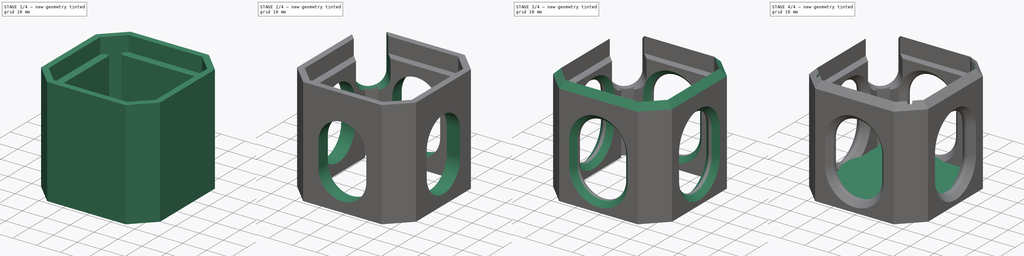
[diagram: build sequence overview — one tinted view per stage of 4, left to right]
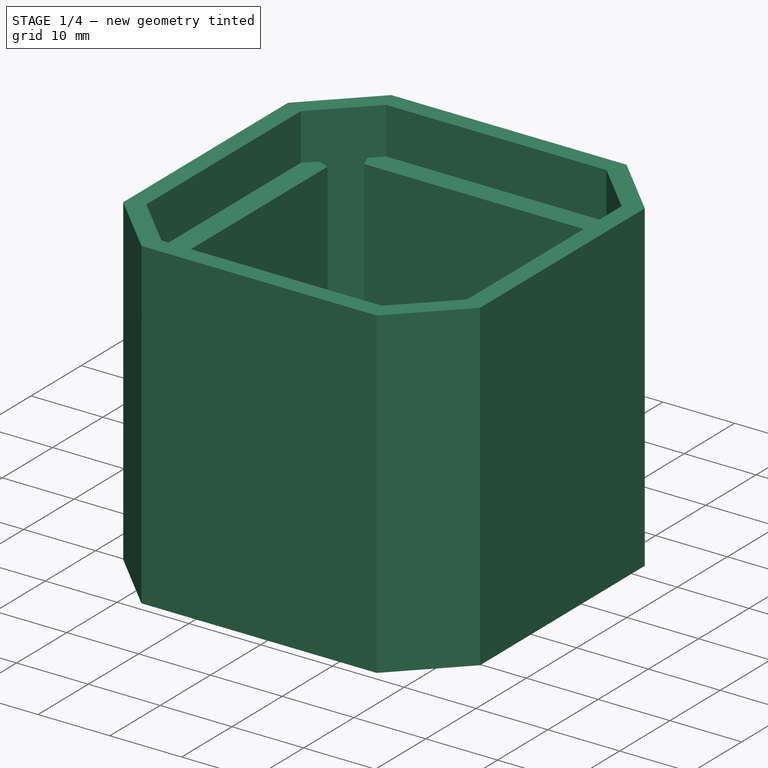
[diagram: stage 1 of 4 — iso view after this stage's code; geometry added in this stage tinted green]
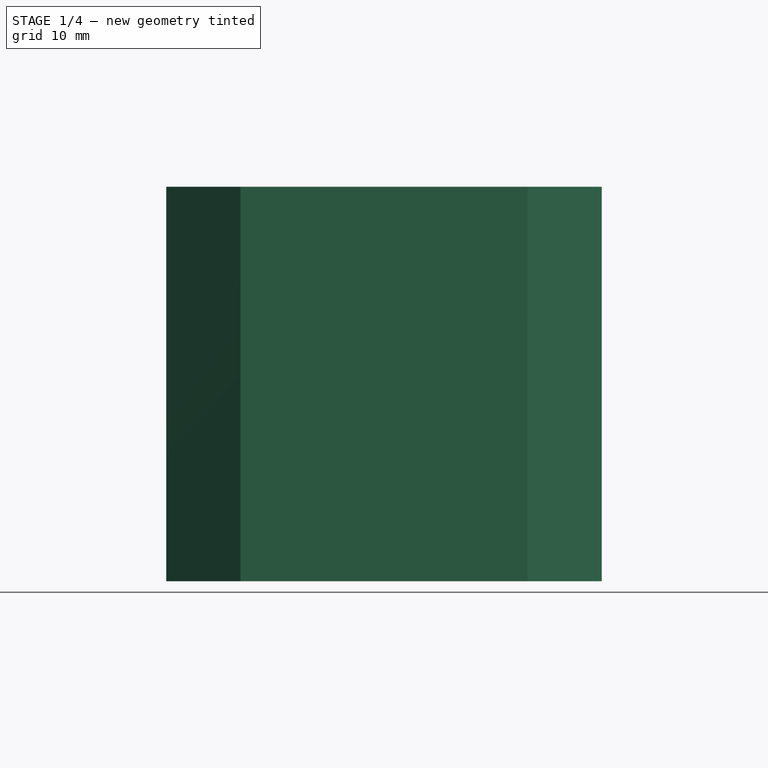
[diagram: stage 1 of 4 — front view after this stage's code; geometry added in this stage tinted green]
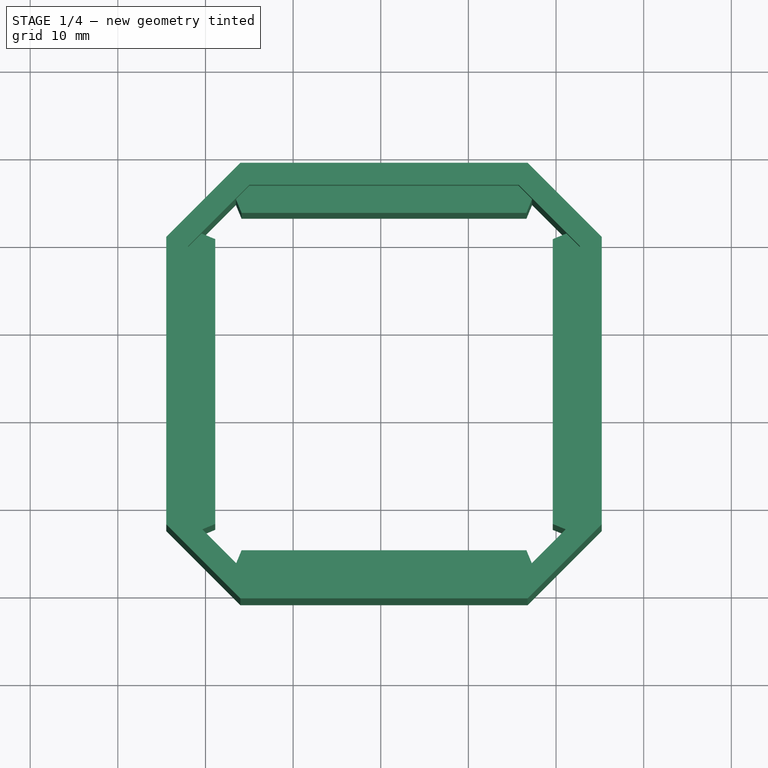
[diagram: stage 1 of 4 — top view after this stage's code; geometry added in this stage tinted green]
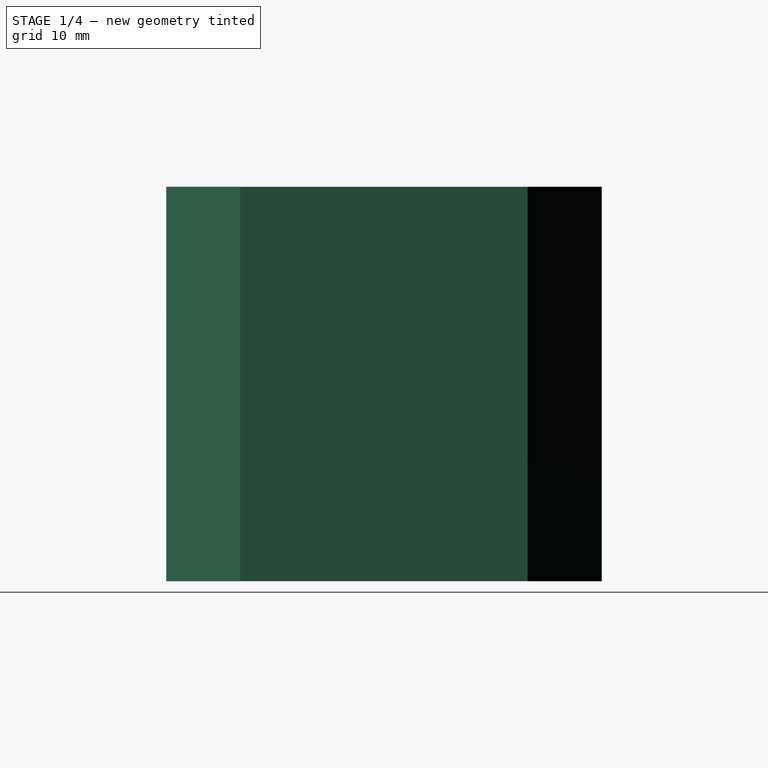
[diagram: stage 1 of 4 — right view after this stage's code; geometry added in this stage tinted green]
FCSTD DOCUMENT  (FreeCAD 0.20R29603 (Git))
Label: static-camera-foot
License: All rights reserved
LicenseURL: http://en.wikipedia.org/wiki/All_rights_reserved
objects: PartDesign::Plane×7, Sketcher::SketchObject×7, PartDesign::Pad×5, PartDesign::Pocket×3, PartDesign::PolarPattern×2, PartDesign::Chamfer×2, PartDesign::ShapeBinder×1, PartDesign::Line×1, PartDesign::Fillet×1, PartDesign::Hole×1, PartDesign::Body×1
note: 43 computed .brp shape members not serialized (recipe doc carries the construction recipe); baked Part::Feature solids carry a one-line shape summary decoded from their .brp

FEATURE [PartDesign::ShapeBinder] ShapeBinder001
  TraceSupport = false
FEATURE [PartDesign::Plane] DatumPlane002
  Length = 396.646
  MapMode = 5
  Placement = pos=(0,0,-11.25) rot=(1,0,0;3.14159rad)
  ResizeMode = 0
  Support = -> [ShapeBinder001]
  Width = 200.286
FEATURE [Sketcher::SketchObject] Sketch003
  ExternalGeometry = -> [ShapeBinder001]
  FullyConstrained = true
  MapMode = 5
  Placement = pos=(0,0,-11.25) rot=(1,0,0;3.14159rad)
  Support = -> [DatumPlane002]
  sketch-geometry (27):
    g0: LineSegment StartX=278.12 StartY=-119.26 StartZ=0 EndX=285.12 EndY=-126.26 EndZ=0
    g1: LineSegment StartX=285.12 StartY=-126.26 StartZ=0 EndX=315.62 EndY=-126.26 EndZ=0
    g2: LineSegment StartX=315.62 StartY=-126.26 StartZ=0 EndX=322.62 EndY=-119.26 EndZ=0
    g3: LineSegment StartX=322.62 StartY=-119.26 StartZ=0 EndX=322.62 EndY=-88.76 EndZ=0
    g4: LineSegment StartX=322.62 StartY=-88.76 StartZ=0 EndX=315.62 EndY=-81.76 EndZ=0
    g5: LineSegment StartX=315.62 StartY=-81.76 StartZ=0 EndX=285.12 EndY=-81.76 EndZ=0
    g6: LineSegment StartX=285.12 StartY=-81.76 StartZ=0 EndX=278.12 EndY=-88.76 EndZ=0
    g7: LineSegment StartX=278.12 StartY=-88.76 StartZ=0 EndX=278.12 EndY=-119.26 EndZ=0
    g8: LineSegment StartX=315.72 StartY=-126.36 StartZ=0 EndX=285.02 EndY=-126.36 EndZ=0
    g9: LineSegment StartX=322.72 StartY=-119.36 StartZ=0 EndX=322.72 EndY=-88.66 EndZ=0
    g10: LineSegment StartX=285.02 StartY=-81.66 StartZ=0 EndX=315.72 EndY=-81.66 EndZ=0
    g11: LineSegment StartX=278.02 StartY=-119.36 StartZ=0 EndX=278.02 EndY=-88.66 EndZ=0
    g12: LineSegment StartX=315.72 StartY=-126.36 StartZ=0 EndX=322.72 EndY=-119.36 EndZ=0
    g13: LineSegment StartX=322.72 StartY=-88.66 StartZ=0 EndX=315.72 EndY=-81.66 EndZ=0
    g14: LineSegment StartX=278.02 StartY=-88.66 StartZ=0 EndX=285.02 EndY=-81.66 EndZ=0
    g15: LineSegment StartX=285.02 StartY=-126.36 StartZ=0 EndX=278.02 EndY=-119.36 EndZ=0
    g16: LineSegment StartX=275.52 StartY=-120.396 StartZ=0 EndX=283.984 EndY=-128.86 EndZ=0
    g17: LineSegment StartX=283.984 StartY=-128.86 StartZ=0 EndX=316.756 EndY=-128.86 EndZ=0
    g18: LineSegment StartX=316.756 StartY=-128.86 StartZ=0 EndX=325.22 EndY=-120.396 EndZ=0
    g19: LineSegment StartX=325.22 StartY=-120.396 StartZ=0 EndX=325.22 EndY=-87.6245 EndZ=0
    g20: LineSegment StartX=325.22 StartY=-87.6245 StartZ=0 EndX=316.756 EndY=-79.16 EndZ=0
    g21: LineSegment StartX=316.756 StartY=-79.16 StartZ=0 EndX=283.984 EndY=-79.16 EndZ=0
    g22: LineSegment StartX=283.984 StartY=-79.16 StartZ=0 EndX=275.52 EndY=-87.6245 EndZ=0
    g23: LineSegment StartX=275.52 StartY=-87.6245 StartZ=0 EndX=275.52 EndY=-120.396 EndZ=0
    g24: LineSegment StartX=279.752 StartY=-124.628 StartZ=0 EndX=281.52 EndY=-122.86 EndZ=0
    g25: GeomPoint X=300.37 Y=-128.86 Z=0
    g26: GeomPoint X=300.37 Y=-126.36 Z=0
  constraints (72):
    c: Coincident(g0,g-3)
    c: Coincident(g0,g-6)
    c: Coincident(g1,g0)
    c: Coincident(g1,g-6)
    c: Coincident(g2,g1)
    c: Coincident(g2,g-5)
    c: Coincident(g3,g2)
    c: Coincident(g3,g-5)
    c: Coincident(g4,g3)
    c: Coincident(g4,g-4)
    c: Coincident(g5,g4)
    c: Coincident(g5,g-4)
    c: Coincident(g6,g5)
    c: Coincident(g6,g-3)
    c: Coincident(g7,g6)
    c: Coincident(g7,g0)
    c: Horizontal(g8)
    c: Vertical(g9)
    c: Horizontal(g10)
    c: Vertical(g11)
    c: Coincident(g12,g8)
    c: Coincident(g12,g9)
    c: Coincident(g13,g9)
    c: Coincident(g13,g10)
    c: Coincident(g14,g11)
    c: Coincident(g14,g10)
    c: Coincident(g15,g8)
    c: Coincident(g15,g11)
    c: Parallel(g15,g0)
    c: Parallel(g14,g6)
    c: Parallel(g13,g4)
    c: Parallel(g12,g2)
    c: Equal(g8,g9)
    c: Equal(g9,g10)
    c: Equal(g10,g11)
    c: Equal(g12,g15)
    c: DistanceY(g5,g10) = 0.1
    c: DistanceX(g10,g5) = 0.1
    c: DistanceX(g1,g8) = 0.1
    c: DistanceY(g8,g1) = 0.1
    c: Coincident(g17,g16)
    c: Horizontal(g17)
    c: Coincident(g18,g17)
    c: Coincident(g19,g18)
    c: Vertical(g19)
    c: Coincident(g20,g19)
    c: Coincident(g21,g20)
    c: Horizontal(g21)
    c: Coincident(g22,g21)
    c: Coincident(g23,g22)
    c: Vertical(g23)
    c: Coincident(g23,g16)
    c: Equal(g18,g22)
    c: Parallel(g22,g14)
    c: Parallel(g18,g22)
    c: Parallel(g16,g20)
    c: Parallel(g15,g16)
    c: Equal(g21,g23)
    c: Equal(g23,g17)
    c: DistanceY(g17,g8) = 2.5
    c: Equal(g20,g22)
    c: Horizontal(g16,g11)
    c: Vertical(g8,g17)
    c: Vertical(g8,g16)
    c: Perpendicular(g16,g24)
    c: Distance(g24) = 2.5
    c: Symmetric(g16,g16,g24)
    c: Symmetric(g15,g15,g24)
    c: Symmetric(g17,g17,g25)
    c: Symmetric(g8,g8,g26)
    c: Vertical(g25,g26)
    c: Distance(g25,g26) = 2.5
FEATURE [PartDesign::Pad] Pad003
  Direction = (1,1,1)
  Length = 4
  Length2 = 6.5
  Placement = pos=(0,0,-11.25) rot=(1,0,0;3.14159rad)
  Profile = -> Sketch003
  Type = 4
FEATURE [PartDesign::Plane] DatumPlane003
  Length = 396.646
  MapMode = 5
  Placement = pos=(0,0,-15.25) rot=(1,0,0;3.14159rad)
  ResizeMode = 0
  Support = -> [Pad003]
  Width = 200.286
FEATURE [Sketcher::SketchObject] Sketch004
  ExternalGeometry = -> [ShapeBinder001,Pad003]
  FullyConstrained = true
  MapMode = 5
  Placement = pos=(0,0,-15.25) rot=(1,0,0;3.14159rad)
  Support = -> [DatumPlane003]
  sketch-geometry (26):
    g0: LineSegment StartX=279.706 StartY=-87.1742 StartZ=0 EndX=279.564 EndY=-87.1156 EndZ=0
    g1: LineSegment StartX=279.706 StartY=-87.1742 StartZ=0 EndX=281.12 EndY=-87.76 EndZ=0
    g2: LineSegment StartX=281.12 StartY=-87.76 StartZ=0 EndX=281.12 EndY=-120.26 EndZ=0
    g3: LineSegment StartX=281.12 StartY=-120.26 StartZ=0 EndX=279.706 EndY=-120.846 EndZ=0
    g4: LineSegment StartX=279.706 StartY=-120.846 StartZ=0 EndX=279.564 EndY=-120.904 EndZ=0
    g5: LineSegment StartX=278.02 StartY=-88.66 StartZ=0 EndX=278.02 EndY=-119.36 EndZ=0
    g6: LineSegment StartX=278.02 StartY=-119.36 StartZ=0 EndX=279.564 EndY=-120.904 EndZ=0
    g7: LineSegment StartX=278.02 StartY=-88.66 StartZ=0 EndX=279.564 EndY=-87.1156 EndZ=0
    g8: LineSegment StartX=284.12 StartY=-123.26 StartZ=0 EndX=316.62 EndY=-123.26 EndZ=0
    g9: LineSegment StartX=284.12 StartY=-123.26 StartZ=0 EndX=283.476 EndY=-124.816 EndZ=0
    g10: LineSegment StartX=316.62 StartY=-123.26 StartZ=0 EndX=317.264 EndY=-124.816 EndZ=0
    g11: LineSegment StartX=317.264 StartY=-124.816 StartZ=0 EndX=315.72 EndY=-126.36 EndZ=0
    g12: LineSegment StartX=315.72 StartY=-126.36 StartZ=0 EndX=285.02 EndY=-126.36 EndZ=0
    g13: LineSegment StartX=285.02 StartY=-126.36 StartZ=0 EndX=283.476 EndY=-124.816 EndZ=0
    g14: LineSegment StartX=319.62 StartY=-120.26 StartZ=0 EndX=321.176 EndY=-120.904 EndZ=0
    g15: LineSegment StartX=321.176 StartY=-120.904 StartZ=0 EndX=322.72 EndY=-119.36 EndZ=0
    g16: LineSegment StartX=322.72 StartY=-119.36 StartZ=0 EndX=322.72 EndY=-88.66 EndZ=0
    g17: LineSegment StartX=322.72 StartY=-88.66 StartZ=0 EndX=321.176 EndY=-87.1156 EndZ=0
    g18: LineSegment StartX=319.62 StartY=-87.76 StartZ=0 EndX=321.176 EndY=-87.1156 EndZ=0
    g19: LineSegment StartX=319.62 StartY=-87.76 StartZ=0 EndX=319.62 EndY=-120.26 EndZ=0
    g20: LineSegment StartX=316.62 StartY=-84.76 StartZ=0 EndX=284.12 EndY=-84.76 EndZ=0
    g21: LineSegment StartX=284.12 StartY=-84.76 StartZ=0 EndX=283.476 EndY=-83.2044 EndZ=0
    g22: LineSegment StartX=283.476 StartY=-83.2044 StartZ=0 EndX=285.02 EndY=-81.66 EndZ=0
    g23: LineSegment StartX=285.02 StartY=-81.66 StartZ=0 EndX=315.72 EndY=-81.66 EndZ=0
    g24: LineSegment StartX=315.72 StartY=-81.66 StartZ=0 EndX=317.264 EndY=-83.2044 EndZ=0
    g25: LineSegment StartX=316.62 StartY=-84.76 StartZ=0 EndX=317.264 EndY=-83.2044 EndZ=0
  constraints (60):
    c: Coincident(g0,g-4)
    c: PointOnObject(g0,g-21)
    c: Parallel(g0,g-4)
    c: Coincident(g1,g0)
    c: Coincident(g1,g-4)
    c: Coincident(g2,g1)
    c: Coincident(g2,g-5)
    c: Coincident(g3,g2)
    c: Coincident(g3,g-5)
    c: Coincident(g4,g3)
    c: PointOnObject(g4,g-19)
    c: Parallel(g4,g3)
    c: Coincident(g5,g-21)
    c: Coincident(g5,g-20)
    c: Coincident(g6,g5)
    c: Coincident(g6,g4)
    c: Coincident(g7,g5)
    c: Coincident(g7,g0)
    c: Coincident(g8,g-7)
    c: Coincident(g8,g-8)
    c: Coincident(g9,g8)
    c: PointOnObject(g9,g-19)
    c: Parallel(g9,g-7)
    c: Coincident(g10,g8)
    c: PointOnObject(g10,g-17)
    c: Parallel(g10,g-8)
    c: Coincident(g11,g10)
    c: Coincident(g11,g-18)
    c: Coincident(g12,g11)
    c: Coincident(g12,g-19)
    c: Coincident(g13,g12)
    c: Coincident(g13,g9)
    c: Coincident(g14,g-10)
    c: PointOnObject(g14,g-17)
    c: Parallel(g14,g-9)
    c: Coincident(g15,g14)
    c: Coincident(g15,g-17)
    c: Coincident(g16,g15)
    c: Coincident(g16,g-16)
    c: Parallel(g-15,g17)
    c: Coincident(g17,g16)
    c: Coincident(g18,g-11)
    c: Coincident(g18,g17)
    c: Parallel(g-11,g18)
    c: Coincident(g19,g18)
    c: Coincident(g19,g14)
    c: Coincident(g20,g-13)
    c: Coincident(g20,g-14)
    c: Coincident(g21,g20)
    c: PointOnObject(g21,g-21)
    c: Parallel(g21,g-14)
    c: Coincident(g22,g21)
    c: Coincident(g22,g-22)
    c: Coincident(g23,g22)
    c: Coincident(g23,g-22)
    c: Coincident(g24,g23)
    c: PointOnObject(g24,g-15)
    c: Coincident(g25,g20)
    c: Coincident(g25,g24)
    c: Parallel(g25,g-12)
FEATURE [PartDesign::Pad] Pad004
  BaseFeature = -> Pad003
  Direction = (1,1,1)
  Length = 4
  Length2 = 100
  Placement = pos=(0,0,-11.25) rot=(1,0,0;3.14159rad)
  Profile = -> Sketch004
  Reversed = true
  Type = 0
FEATURE [PartDesign::Plane] DatumPlane004
  Length = 396.646
  MapMode = 5
  Placement = pos=(0,0,-15.25) rot=(1,0,0;3.14159rad)
  ResizeMode = 0
  Support = -> [Pad004]
  Width = 200.286
FEATURE [Sketcher::SketchObject] Sketch005
  ExternalGeometry = -> [ShapeBinder001]
  FullyConstrained = true
  MapMode = 5
  Placement = pos=(0,0,-15.25) rot=(1,0,0;3.14159rad)
  Support = -> [DatumPlane004]
  sketch-geometry (27):
    g0: LineSegment StartX=278.12 StartY=-119.26 StartZ=0 EndX=285.12 EndY=-126.26 EndZ=0
    g1: LineSegment StartX=285.12 StartY=-126.26 StartZ=0 EndX=315.62 EndY=-126.26 EndZ=0
    g2: LineSegment StartX=315.62 StartY=-126.26 StartZ=0 EndX=322.62 EndY=-119.26 EndZ=0
    g3: LineSegment StartX=322.62 StartY=-119.26 StartZ=0 EndX=322.62 EndY=-88.76 EndZ=0
    g4: LineSegment StartX=322.62 StartY=-88.76 StartZ=0 EndX=315.62 EndY=-81.76 EndZ=0
    g5: LineSegment StartX=315.62 StartY=-81.76 StartZ=0 EndX=285.12 EndY=-81.76 EndZ=0
    g6: LineSegment StartX=285.12 StartY=-81.76 StartZ=0 EndX=278.12 EndY=-88.76 EndZ=0
    g7: LineSegment StartX=278.12 StartY=-88.76 StartZ=0 EndX=278.12 EndY=-119.26 EndZ=0
    g8: LineSegment StartX=315.72 StartY=-126.36 StartZ=0 EndX=285.02 EndY=-126.36 EndZ=0
    g9: LineSegment StartX=322.72 StartY=-119.36 StartZ=0 EndX=322.72 EndY=-88.66 EndZ=0
    g10: LineSegment StartX=285.02 StartY=-81.66 StartZ=0 EndX=315.72 EndY=-81.66 EndZ=0
    g11: LineSegment StartX=278.02 StartY=-119.36 StartZ=0 EndX=278.02 EndY=-88.66 EndZ=0
    g12: LineSegment StartX=315.72 StartY=-126.36 StartZ=0 EndX=322.72 EndY=-119.36 EndZ=0
    g13: LineSegment StartX=322.72 StartY=-88.66 StartZ=0 EndX=315.72 EndY=-81.66 EndZ=0
    g14: LineSegment StartX=278.02 StartY=-88.66 StartZ=0 EndX=285.02 EndY=-81.66 EndZ=0
    g15: LineSegment StartX=285.02 StartY=-126.36 StartZ=0 EndX=278.02 EndY=-119.36 EndZ=0
    g16: LineSegment StartX=275.52 StartY=-120.396 StartZ=0 EndX=283.984 EndY=-128.86 EndZ=0
    g17: LineSegment StartX=283.984 StartY=-128.86 StartZ=0 EndX=316.756 EndY=-128.86 EndZ=0
    g18: LineSegment StartX=316.756 StartY=-128.86 StartZ=0 EndX=325.22 EndY=-120.396 EndZ=0
    g19: LineSegment StartX=325.22 StartY=-120.396 StartZ=0 EndX=325.22 EndY=-87.6245 EndZ=0
    g20: LineSegment StartX=325.22 StartY=-87.6245 StartZ=0 EndX=316.756 EndY=-79.16 EndZ=0
    g21: LineSegment StartX=316.756 StartY=-79.16 StartZ=0 EndX=283.984 EndY=-79.16 EndZ=0
    g22: LineSegment StartX=283.984 StartY=-79.16 StartZ=0 EndX=275.52 EndY=-87.6245 EndZ=0
    g23: LineSegment StartX=275.52 StartY=-87.6245 StartZ=0 EndX=275.52 EndY=-120.396 EndZ=0
    g24: LineSegment StartX=279.752 StartY=-124.628 StartZ=0 EndX=281.52 EndY=-122.86 EndZ=0
    g25: GeomPoint X=300.37 Y=-128.86 Z=0
    g26: GeomPoint X=300.37 Y=-126.36 Z=0
  constraints (72):
    c: Coincident(g0,g-3)
    c: Coincident(g0,g-6)
    c: Coincident(g1,g0)
    c: Coincident(g1,g-6)
    c: Coincident(g2,g1)
    c: Coincident(g2,g-5)
    c: Coincident(g3,g2)
    c: Coincident(g3,g-5)
    c: Coincident(g4,g3)
    c: Coincident(g4,g-4)
    c: Coincident(g5,g4)
    c: Coincident(g5,g-4)
    c: Coincident(g6,g5)
    c: Coincident(g6,g-3)
    c: Coincident(g7,g6)
    c: Coincident(g7,g0)
    c: Horizontal(g8)
    c: Vertical(g9)
    c: Horizontal(g10)
    c: Vertical(g11)
    c: Coincident(g12,g8)
    c: Coincident(g12,g9)
    c: Coincident(g13,g9)
    c: Coincident(g13,g10)
    c: Coincident(g14,g11)
    c: Coincident(g14,g10)
    c: Coincident(g15,g8)
    c: Coincident(g15,g11)
    c: Parallel(g15,g0)
    c: Parallel(g14,g6)
    c: Parallel(g13,g4)
    c: Parallel(g12,g2)
    c: Equal(g8,g9)
    c: Equal(g9,g10)
    c: Equal(g10,g11)
    c: Equal(g12,g15)
    c: DistanceY(g5,g10) = 0.1
    c: DistanceX(g10,g5) = 0.1
    c: DistanceX(g1,g8) = 0.1
    c: DistanceY(g8,g1) = 0.1
    c: Coincident(g17,g16)
    c: Horizontal(g17)
    c: Coincident(g18,g17)
    c: Coincident(g19,g18)
    c: Vertical(g19)
    c: Coincident(g20,g19)
    c: Coincident(g21,g20)
    c: Horizontal(g21)
    c: Coincident(g22,g21)
    c: Coincident(g23,g22)
    c: Vertical(g23)
    c: Coincident(g23,g16)
    c: Equal(g18,g22)
    c: Parallel(g22,g14)
    c: Parallel(g18,g22)
    c: Parallel(g16,g20)
    c: Parallel(g15,g16)
    c: Equal(g21,g23)
    c: Equal(g23,g17)
    c: DistanceY(g17,g8) = 2.5
    c: Equal(g20,g22)
    c: Horizontal(g16,g11)
    c: Vertical(g8,g17)
    c: Vertical(g8,g16)
    c: Perpendicular(g16,g24)
    c: Distance(g24) = 2.5
    c: Symmetric(g16,g16,g24)
    c: Symmetric(g15,g15,g24)
    c: Symmetric(g17,g17,g25)
    c: Symmetric(g8,g8,g26)
    c: Vertical(g25,g26)
    c: Distance(g25,g26) = 2.5
FEATURE [PartDesign::Pad] Pad005
  BaseFeature = -> Pad004
  Direction = (1,1,1)
  Length = 34.5
  Length2 = 100
  Placement = pos=(0,0,-11.25) rot=(1,0,0;3.14159rad)
  Profile = -> Sketch005
  Type = 0
FEATURE [PartDesign::Plane] DatumPlane005
  Length = 389.084
  MapMode = 5
  Placement = pos=(77.5622,-77.5622,-11.25) rot=(-0.862856,-0.357407,0.357407;1.71777rad)
  ResizeMode = 0
  Support = -> [Pad005]
  Width = 107.396
FEATURE [Sketcher::SketchObject] Sketch006
  ExternalGeometry = -> [Pad005]
  FullyConstrained = true
  MapMode = 5
  Placement = pos=(77.5622,-77.5622,-11.25) rot=(-0.862856,-0.357407,0.357407;1.71777rad)
  Support = -> [DatumPlane005]
  sketch-geometry (4):
    g0: ArcOfCircle CenterX=285.94 CenterY=7.5 CenterZ=0 NormalX=0 NormalY=0 NormalZ=1 AngleXU=0 Radius=5.98528 StartAngle=6.28318 EndAngle=9.42478
    g1: LineSegment StartX=279.955 StartY=-6.5 StartZ=0 EndX=279.955 EndY=7.49998 EndZ=0
    g2: LineSegment StartX=291.925 StartY=-6.5 StartZ=0 EndX=291.925 EndY=7.49998 EndZ=0
    g3: LineSegment StartX=291.925 StartY=-6.5 StartZ=0 EndX=279.955 EndY=-6.5 EndZ=0
  constraints (11):
    c: Tangent(g0,g-6)
    c: Tangent(g-5,g0)
    c: Coincident(g1,g-7)
    c: Vertical(g1)
    c: Coincident(g2,g-7)
    c: Vertical(g2)
    c: Coincident(g3,g2)
    c: Coincident(g3,g1)
    c: DistanceY(g2,g0) = 14
    c: Coincident(g0,g2)
    c: Coincident(g0,g1)
FEATURE [PartDesign::Pad] Pad
  BaseFeature = -> Pad005
  Direction = (1,1,1)
  Length = 34.5
  Length2 = 100
  Placement = pos=(0,0,-11.25) rot=(1,0,0;3.14159rad)
  Profile = -> Sketch004
  Type = 0
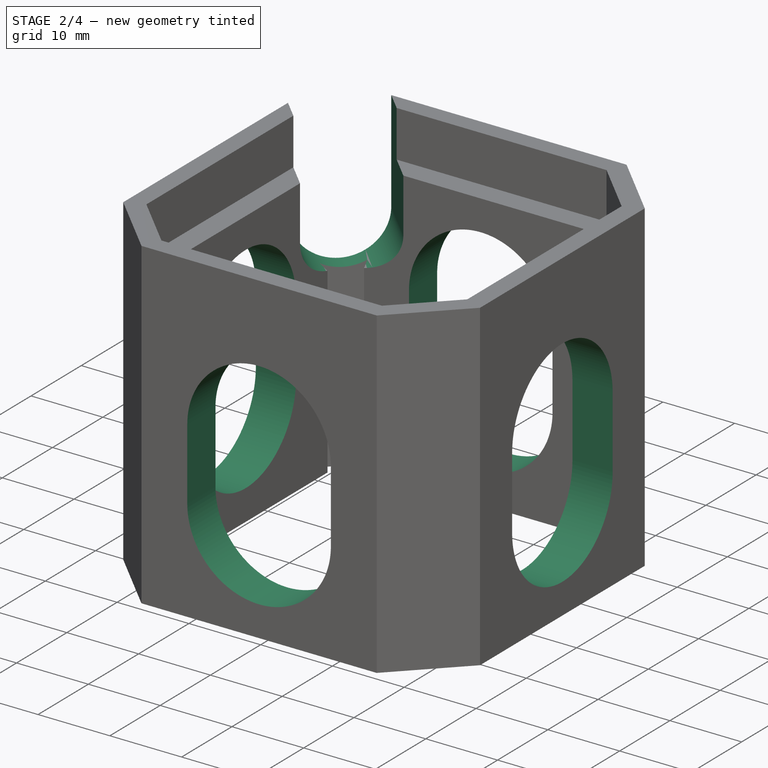
[diagram: stage 2 of 4 — iso view after this stage's code; geometry added in this stage tinted green]
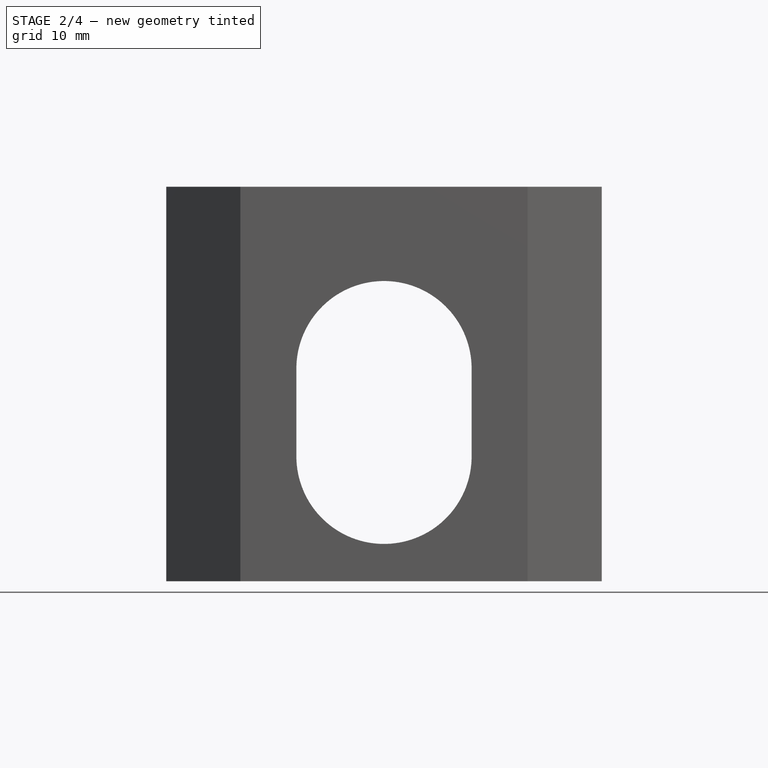
[diagram: stage 2 of 4 — front view after this stage's code; geometry added in this stage tinted green]
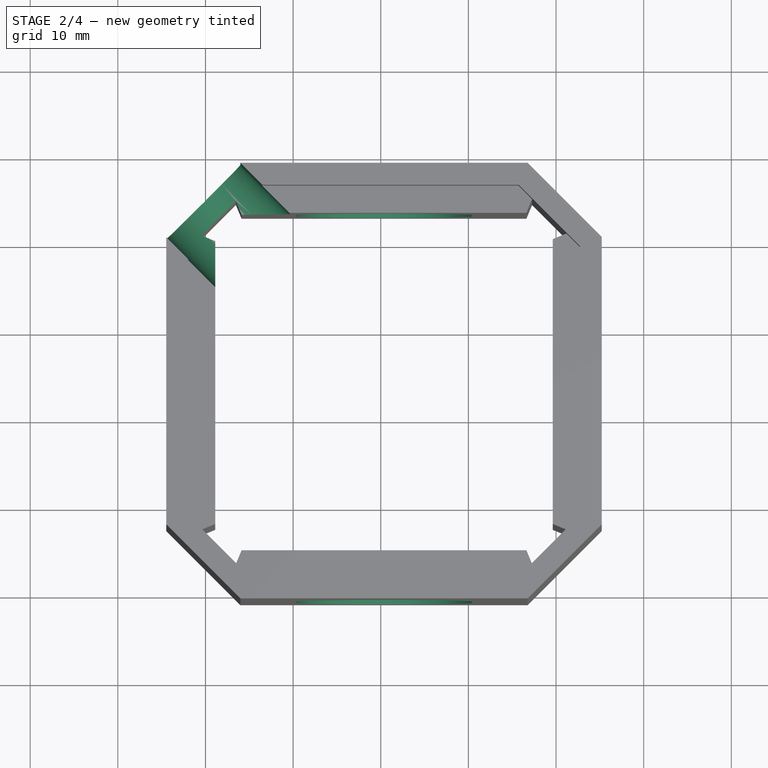
[diagram: stage 2 of 4 — top view after this stage's code; geometry added in this stage tinted green]
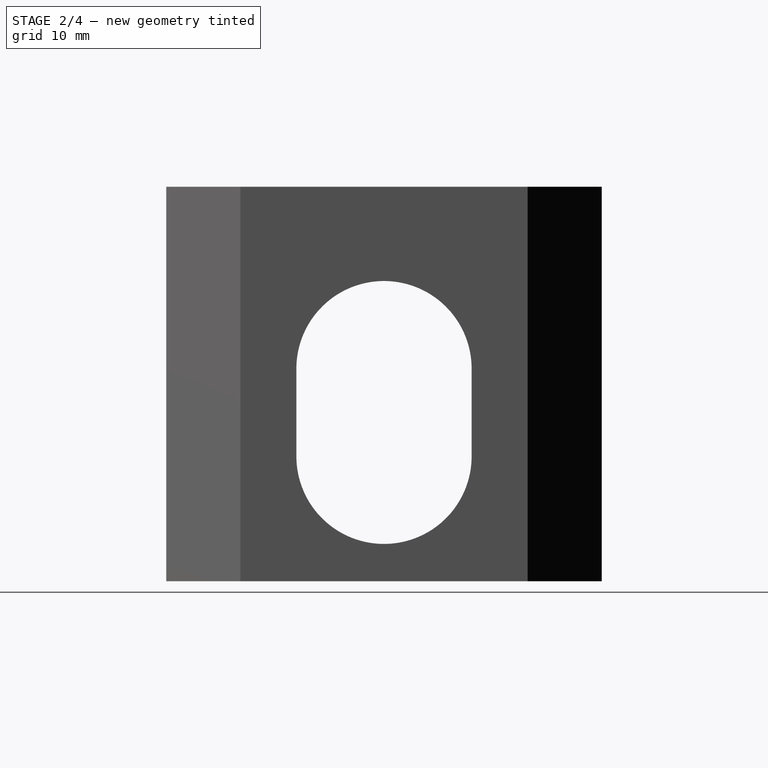
[diagram: stage 2 of 4 — right view after this stage's code; geometry added in this stage tinted green]
FEATURE [PartDesign::Pocket] Pocket
  BaseFeature = -> Pad
  Direction = (1,1,1)
  Length = 10
  Length2 = 100
  Placement = pos=(0,0,-11.25) rot=(1,0,0;3.14159rad)
  Profile = -> Sketch006
  Type = 0
FEATURE [PartDesign::Plane] DatumPlane
  AttachmentOffset = pos=(0,0,20) rot=(0,0,1;0rad)
  Length = 175.309
  MapMode = 5
  Placement = pos=(301.12,0,-11.25) rot=(0.57735,-0.57735,0.57735;4.18879rad)
  ResizeMode = 0
  Support = -> [Pocket]
  Width = 96.1986
FEATURE [Sketcher::SketchObject] Sketch
  FullyConstrained = false
  MapMode = 5
  Placement = pos=(301.12,0,-11.25) rot=(0.57735,-0.57735,0.57735;4.18879rad)
  Support = -> [DatumPlane]
  sketch-geometry (9):
    g0: ArcOfCircle CenterX=-104.01 CenterY=14.25 CenterZ=0 NormalX=0 NormalY=0 NormalZ=1 AngleXU=0 Radius=10 StartAngle=3.14159 EndAngle=6.28319
    g1: ArcOfCircle CenterX=-104.01 CenterY=24.25 CenterZ=0 NormalX=0 NormalY=0 NormalZ=1 AngleXU=0 Radius=10 StartAngle=1e-16 EndAngle=3.14159
    g2: LineSegment StartX=-94.01 StartY=14.25 StartZ=0 EndX=-94.01 EndY=24.25 EndZ=0
    g3: LineSegment StartX=-114.01 StartY=14.25 StartZ=0 EndX=-114.01 EndY=24.25 EndZ=0
    g4: GeomPoint X=-101.278 Y=-2.49e-14 Z=0
    g5: GeomPoint X=-104.01 Y=38.5 Z=0
    g6: GeomPoint X=-104.01 Y=38.5 Z=0
    g7: LineSegment StartX=-104.01 StartY=24.25 StartZ=0 EndX=-104.01 EndY=38.5 EndZ=0
    g8: LineSegment StartX=-104.01 StartY=14.25 StartZ=0 EndX=-104.01 EndY=0 EndZ=0
  constraints (16):
    c: Tangent(g0,g3) = 1.5708
    c: Tangent(g0,g2) = -1.5708
    c: Tangent(g2,g1) = -1.5708
    c: Tangent(g3,g1) = 1.5708
    c: Vertical(g2)
    c: Equal(g0,g1)
    c: DistanceY(g0,g1) = 10
    c: Diameter(g1) = 20
    c: Coincident(g6,g5)
    c: Vertical(g1,g5)
    c: Coincident(g7,g1)
    c: Vertical(g7)
    c: Coincident(g8,g0)
    c: PointOnObject(g8,g-1)
    c: Vertical(g8)
    c: Equal(g8,g7)
FEATURE [PartDesign::Pocket] Pocket001  label="Circular Cutout"
  BaseFeature = -> Pocket
  Direction = (1,1,1)
  Length = 100
  Length2 = 100
  Placement = pos=(0,0,-11.25) rot=(1,0,0;3.14159rad)
  Profile = -> Sketch
  Type = 4
FEATURE [PartDesign::Line] DatumLine
  AttacherType = Attacher::AttachEngineLine
  AttachmentOffset = pos=(0,0,0) rot=(0,0,1;0.017453rad)
  Length = 20
  MapMode = 42
  Placement = pos=(300.37,104.01,-11.25) rot=(0,0,1;0.017453rad)
  ResizeMode = 0
  Support = -> [Pocket001]
FEATURE [PartDesign::PolarPattern] PolarPattern  label="Circular Cutout - Patterned"
  Angle = 360
  Axis = -> DatumLine
  BaseFeature = -> Pocket001
  Occurrences = 4
  Originals = -> [Pocket001]
  Placement = pos=(0,0,-11.25) rot=(1,0,0;3.14159rad)
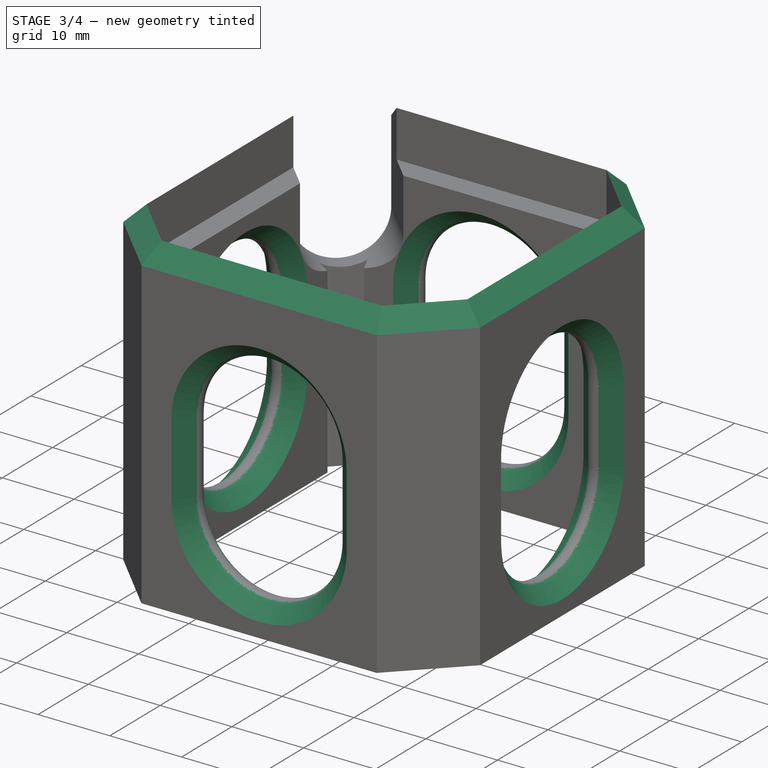
[diagram: stage 3 of 4 — iso view after this stage's code; geometry added in this stage tinted green]
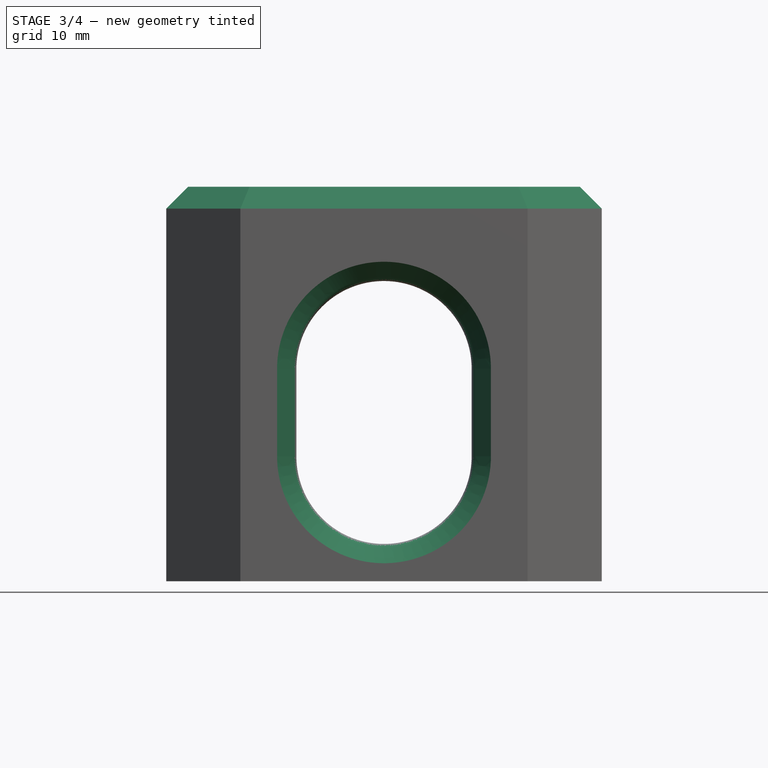
[diagram: stage 3 of 4 — front view after this stage's code; geometry added in this stage tinted green]
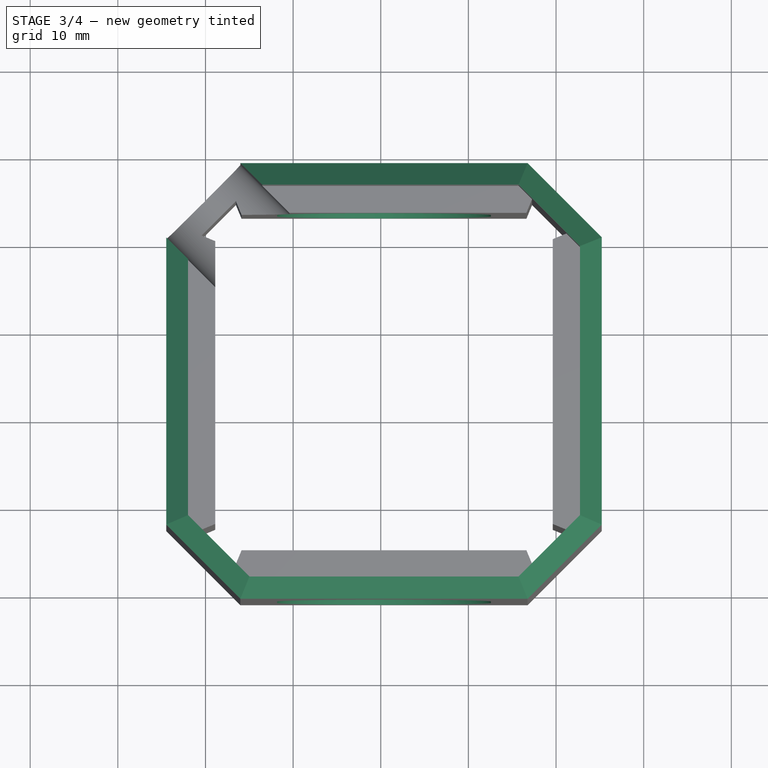
[diagram: stage 3 of 4 — top view after this stage's code; geometry added in this stage tinted green]
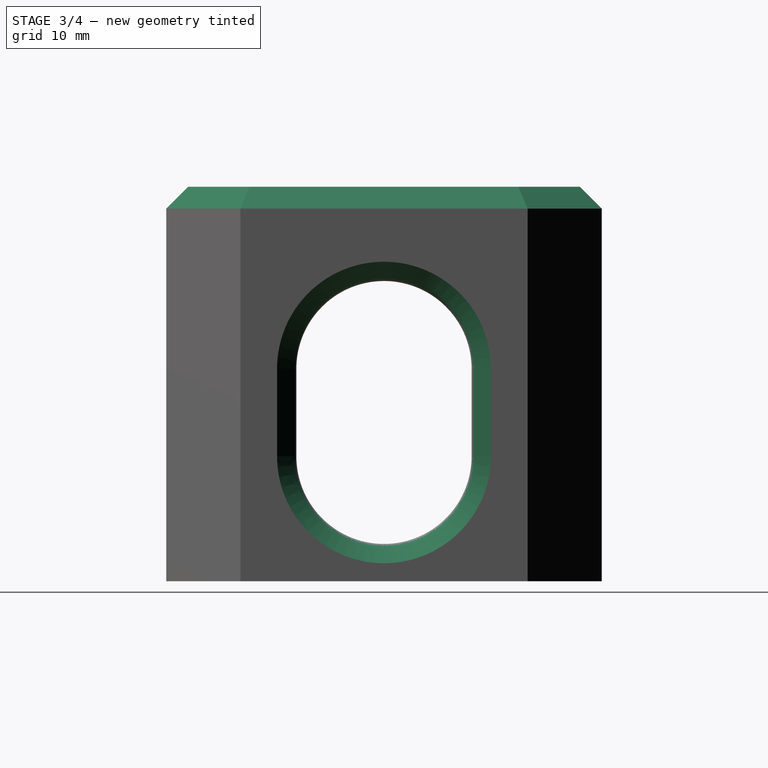
[diagram: stage 3 of 4 — right view after this stage's code; geometry added in this stage tinted green]
FEATURE [PartDesign::Chamfer] Chamfer
  Angle = 45
  Base = -> PolarPattern [Edge31,Edge51,Edge196,Edge127,Edge206,Edge152,Edge157,Edge140,Edge142,Edge159,Edge33,Edge53,Edge191,Edge125,Edge154,Edge210]
  BaseFeature = -> PolarPattern
  ChamferType = 0
  FlipDirection = false
  Placement = pos=(0,0,-11.25) rot=(1,0,0;3.14159rad)
  Size = 2.2
  Size2 = 1
  SupportTransform = false
  UseAllEdges = false
FEATURE [PartDesign::Chamfer] Chamfer001
  Angle = 45
  Base = -> Chamfer [Edge26,Edge25,Edge24,Edge23,Edge22,Edge20,Edge5]
  BaseFeature = -> Chamfer
  ChamferType = 0
  FlipDirection = false
  Placement = pos=(0,0,-11.25) rot=(1,0,0;3.14159rad)
  Size = 2.49
  Size2 = 1
  SupportTransform = false
  UseAllEdges = false
FEATURE [PartDesign::Fillet] Fillet
  Base = -> Chamfer001 [Edge271,Edge311,Edge79,Edge206,Edge234,Edge320,Edge341,Edge282]
  BaseFeature = -> Chamfer001
  Placement = pos=(0,0,-11.25) rot=(1,0,0;3.14159rad)
  Radius = 1.4
  SupportTransform = false
  UseAllEdges = false
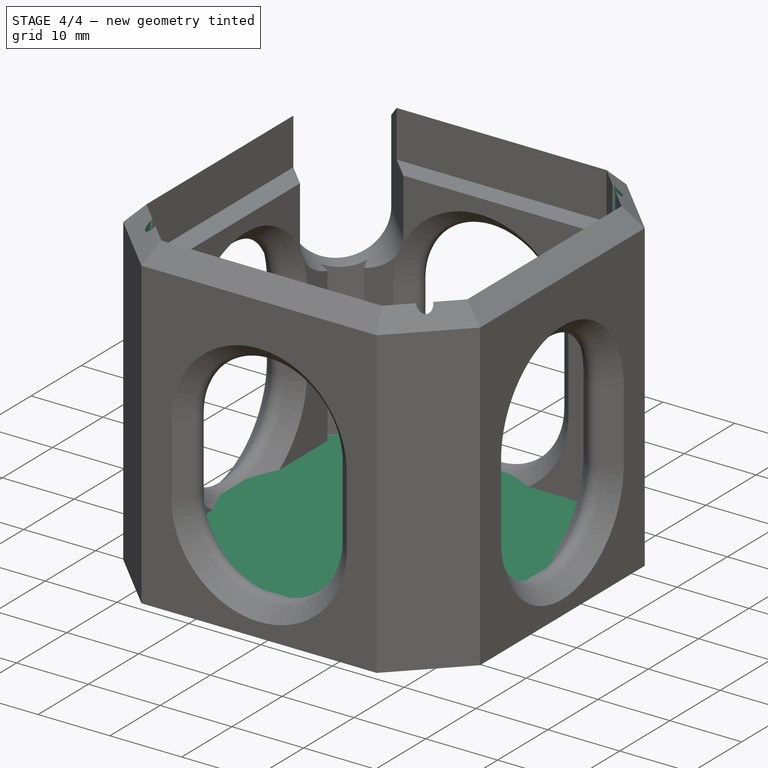
[diagram: stage 4 of 4 — iso view after this stage's code; geometry added in this stage tinted green]
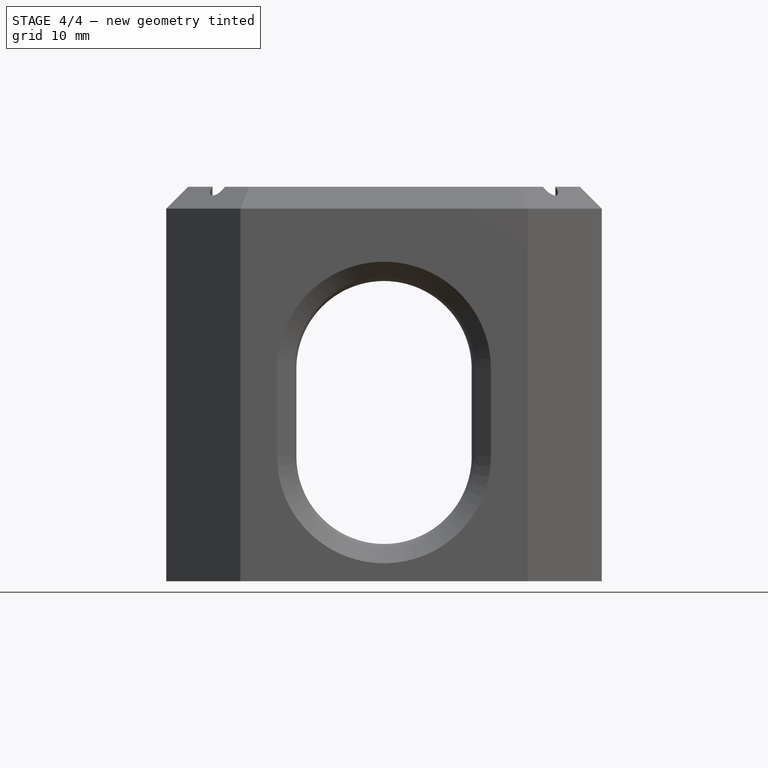
[diagram: stage 4 of 4 — front view after this stage's code; geometry added in this stage tinted green]
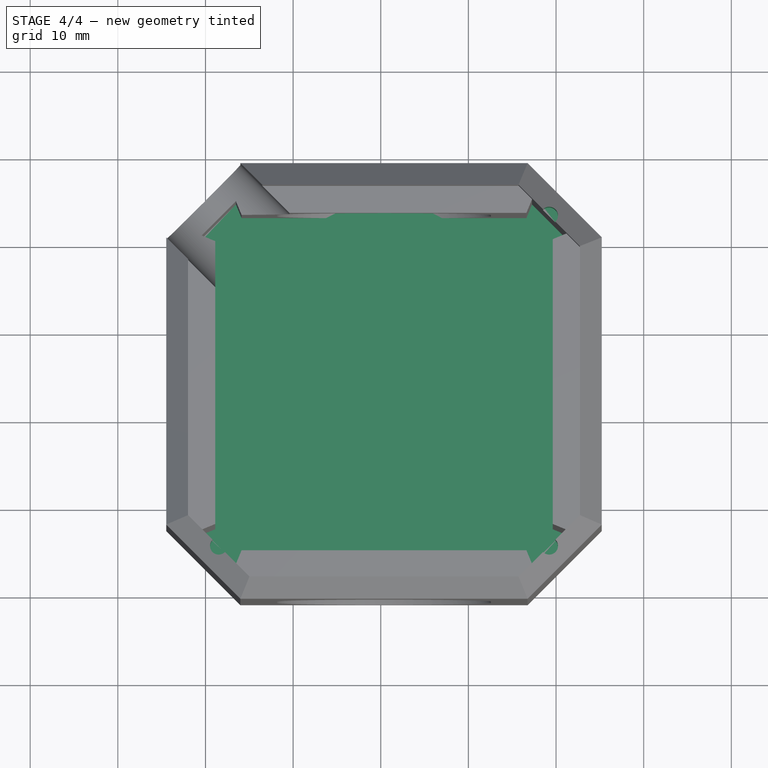
[diagram: stage 4 of 4 — top view after this stage's code; geometry added in this stage tinted green]
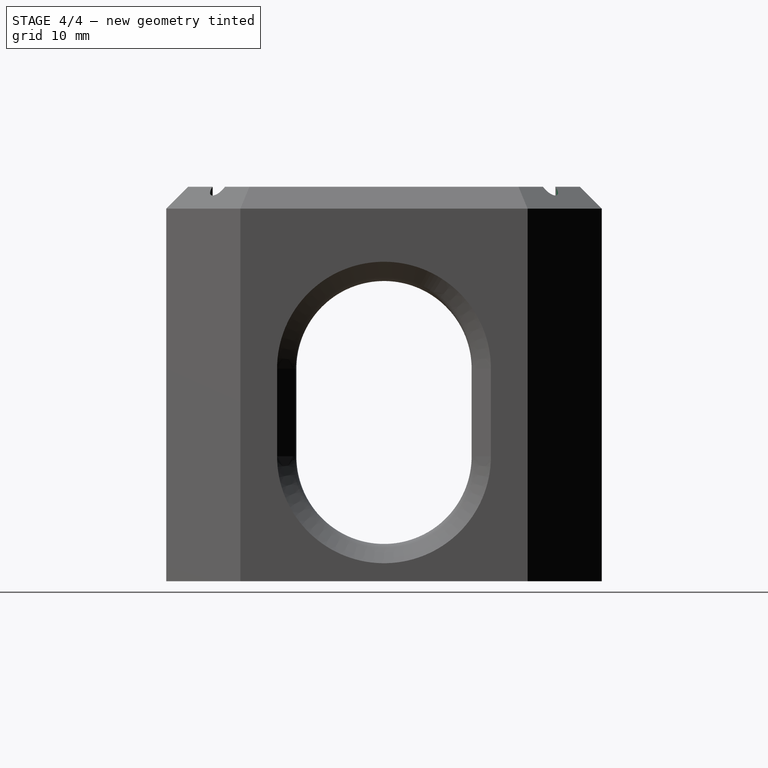
[diagram: stage 4 of 4 — right view after this stage's code; geometry added in this stage tinted green]
FEATURE [PartDesign::Plane] DatumPlane006
  Length = 396.646
  MapMode = 5
  Placement = pos=(0,0,-11.25) rot=(0,0,1;0rad)
  ResizeMode = 0
  Support = -> [Fillet]
  Width = 200.286
FEATURE [Sketcher::SketchObject] Sketch007
  ExternalGeometry = -> [Fillet]
  FullyConstrained = true
  MapMode = 5
  Placement = pos=(0,0,-11.25) rot=(0,0,1;0rad)
  Support = -> [DatumPlane006]
  sketch-geometry (5):
    g0: LineSegment StartX=281.12 StartY=114.796 StartZ=0 EndX=281.12 EndY=123.26 EndZ=0
    g1: LineSegment StartX=281.12 StartY=123.26 StartZ=0 EndX=289.584 EndY=123.26 EndZ=0
    g2: LineSegment StartX=281.12 StartY=87.76 StartZ=0 EndX=281.12 EndY=84.76 EndZ=0
    g3: LineSegment StartX=284.12 StartY=84.76 StartZ=0 EndX=281.12 EndY=84.76 EndZ=0
    g4: Circle CenterX=281.52 CenterY=85.16 CenterZ=0 NormalX=0 NormalY=0 NormalZ=1 AngleXU=0 Radius=1
  constraints (10):
    c: Coincident(g0,g-5)
    c: Vertical(g0)
    c: Coincident(g1,g0)
    c: Tangent(g1,g-3) = -1.5708
    c: Coincident(g2,g-5)
    c: Coincident(g3,g2)
    c: Tangent(g3,g-7) = -1.5708
    c: Vertical(g2)
    c: Symmetric(g-13,g-13,g4)
    c: Diameter(g4) = 2
FEATURE [PartDesign::Pocket] Pocket002
  BaseFeature = -> Fillet
  Direction = (1,1,1)
  Length = 12
  Length2 = 100
  Placement = pos=(0,0,-11.25) rot=(1,0,0;3.14159rad)
  Profile = -> Sketch007
  Reversed = true
  Type = 1
FEATURE [PartDesign::PolarPattern] PolarPattern001
  Angle = 360
  Axis = -> DatumLine
  BaseFeature = -> Pocket002
  Occurrences = 4
  Originals = -> [Pocket002]
  Placement = pos=(0,0,-11.25) rot=(1,0,0;3.14159rad)
FEATURE [PartDesign::Plane] DatumPlane007  label="PrintPlane"
  Length = 396.646
  MapMode = 5
  Placement = pos=(0,1e-14,-49.75) rot=(1,0,0;3.14159rad)
  ResizeMode = 0
  Support = -> [PolarPattern001]
  Width = 200.286
FEATURE [PartDesign::Pad] Pad006  label="Bottom Cap"
  BaseFeature = -> PolarPattern001
  Direction = (0,0,1)
  Length = 4
  Length2 = 10
  Placement = pos=(0,0,-11.25) rot=(1,0,0;3.14159rad)
  Profile = -> PolarPattern001 [Edge65,Edge67,Edge66,Edge68,Edge69,Edge71,Edge70,Edge72,Edge73,Edge75,Edge76,Edge74,Edge77,Edge63,Edge64,Edge62]
  Type = 0
FEATURE [Sketcher::SketchObject] Sketch008
  ExternalGeometry = -> [Pad006]
  FullyConstrained = false
  MapMode = 5
  Placement = pos=(0,1e-14,-49.75) rot=(1,0,0;3.14159rad)
  Support = -> [DatumPlane007]
  sketch-geometry (2):
    g0: LineSegment StartX=279.752 StartY=-124.628 StartZ=0 EndX=320.988 EndY=-83.3922 EndZ=0
    g1: Circle CenterX=300.37 CenterY=-104.01 CenterZ=0 NormalX=0 NormalY=0 NormalZ=1 AngleXU=0 Radius=6.27793
  constraints (3):
    c: Symmetric(g-4,g-4,g0)
    c: Symmetric(g-3,g-3,g0)
    c: Symmetric(g0,g0,g1)
FEATURE [PartDesign::Hole] Hole
  BaseFeature = -> Pad006
  CustomThreadClearance = 0
  Depth = 0.8
  DepthType = 0
  Diameter = 10
  DrillForDepth = false
  DrillPoint = 0
  DrillPointAngle = 118
  HoleCutCountersinkAngle = 90
  HoleCutCustomValues = false
  HoleCutDepth = 0.75
  HoleCutDiameter = 11
  HoleCutType = 2
  ModelThread = false
  Placement = pos=(0,0,-11.25) rot=(1,0,0;3.14159rad)
  Profile = -> Sketch008
  Tapered = false
  TaperedAngle = 90
  ThreadClass = 0
  ThreadDepth = 0.8
  ThreadDepthType = 0
  ThreadDirection = 0
  ThreadFit = 0
  ThreadSize = 0
  ThreadType = 0
  Threaded = false
  UseCustomThreadClearance = false
FEATURE [PartDesign::Body] Body001  label="Body"
  Group = -> [ShapeBinder001,DatumPlane002,Sketch003,Pad003,DatumPlane003,Sketch004,Pad004,DatumPlane004,Sketch005,Pad005,DatumPlane005,Sketch006,Pad,Pocket,DatumPlane,Sketch,Pocket001,DatumLine,PolarPattern,Chamfer,Chamfer001,Fillet,DatumPlane006,Sketch007,Pocket002,PolarPattern001,DatumPlane007,Pad006,Sketch008,Hole]
  Origin = -> Origin001
  Tip = -> Hole
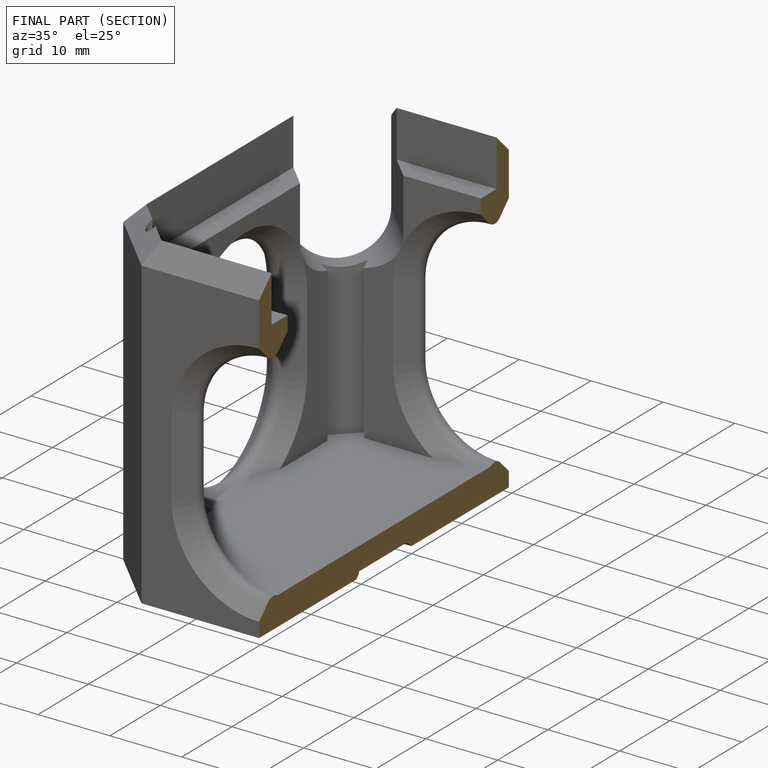
[diagram: finished part — half-section view (interior)]
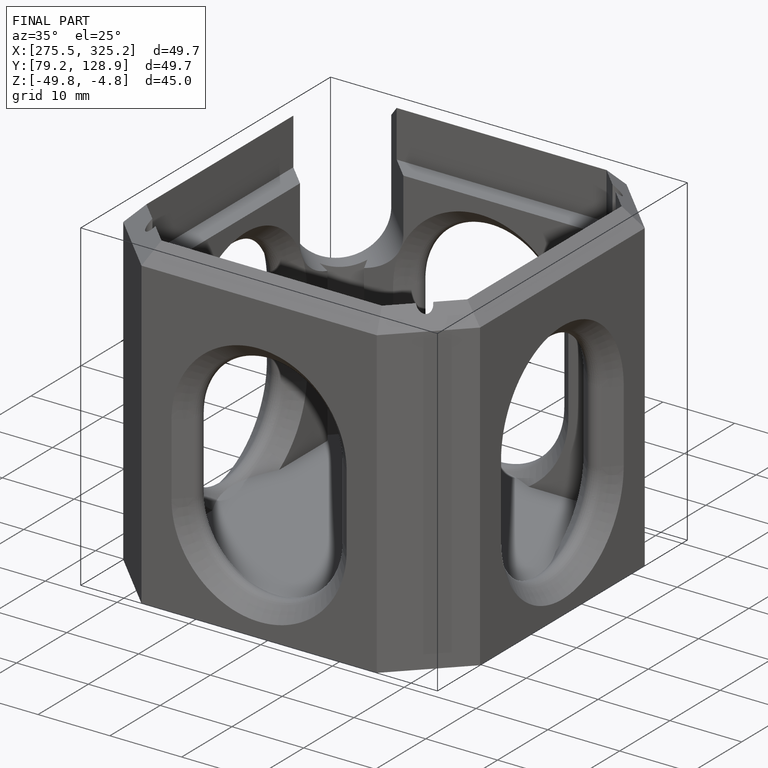
[diagram: finished part — iso view with bounding-box wireframe]
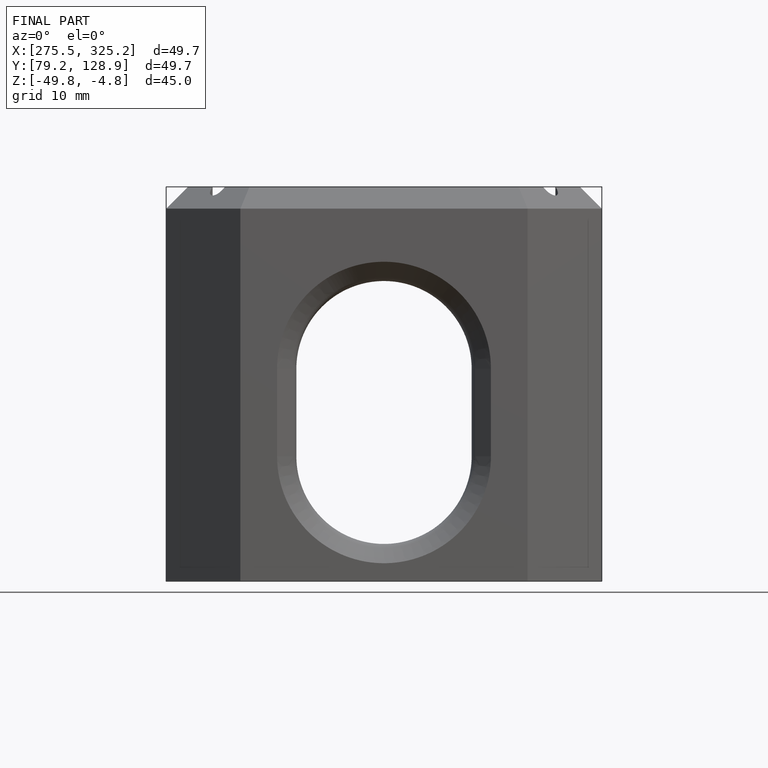
[diagram: finished part — front view with bounding-box wireframe]
